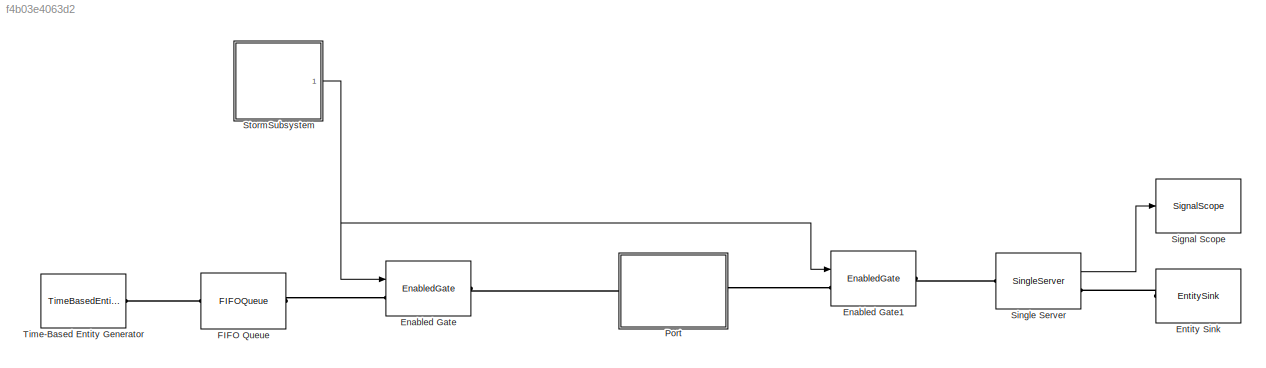
MODEL slx_f4b03e4063d2
KIND model
BLOCK [EnabledGate] Enabled Gate
  InputPortMap = u0
  Ports = [1, 0, 0, 0, 0, 1, 1]
BLOCK [EnabledGate] Enabled Gate1
  InputPortMap = u0
  Ports = [1, 0, 0, 0, 0, 1, 1]
BLOCK [EntitySink] Entity Sink
  Ports = [0, 0, 0, 0, 0, 1]
BLOCK [FIFOQueue] FIFO Queue
  Ports = [0, 0, 0, 0, 0, 1, 1]
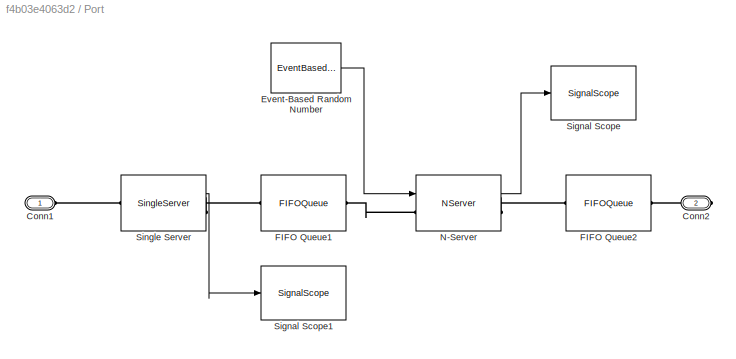
BLOCK [SubSystem] Port 
  FunctionWithSeparateData = off
  MaskHideContents = off
  MinAlgLoopOccurrences = off
  Opaque = off
  Ports = [0, 0, 0, 0, 0, 1, 1]
  PropExecContextOutsideSubsystem = off
  RTWSystemCode = Auto
  RequestExecContextInheritance = off
BLOCK [PMIOPort] Port /Conn1
  Port = 1
  Side = Left
BLOCK [PMIOPort] Port /Conn2
  Port = 2
  Side = Right
BLOCK [EventBasedRandomNumber] Port /Event-Based Random Number
  Distribution = Uniform
  OutputPortMap = o0
  Ports = [0, 1]
  maxUnif = 17
  minUnif = 7
BLOCK [FIFOQueue] Port /FIFO Queue1
  Ports = [0, 0, 0, 0, 0, 1, 1]
BLOCK [FIFOQueue] Port /FIFO Queue2
  Ports = [0, 0, 0, 0, 0, 1, 1]
BLOCK [NServer] Port /N-Server
  InputPortMap = u0
  NumberOfServers = 3
  OutputPortMap = o0
  Ports = [1, 1, 0, 0, 0, 1, 1]
  ServiceTimeFrom = Signal port t
  StatNumberDeparted = on
BLOCK [SignalScope] Port /Signal Scope
  CopyFcn = des.scope.CallbackSupport('seCopyFcn',gcbh)
  DeleteFcn = des.scope.CallbackSupport('seDeleteFcn',gcbh)
  InputPortMap = u0
  LoadFcn = des.scope.CallbackSupport('seLoadFcn',gcbh)
  NameChangeFcn = des.scope.CallbackSupport('seNameChangeFcn',gcbh)
  OpenFcn = des.scope.CallbackSupport('seOpenFcn',gcbh)
  Ports = [1]
  PreSaveFcn = des.scope.CallbackSupport('sePreSaveFcn',gcbh)
  StartFcn = des.scope.CallbackSupport('seStartFcn',gcbh)
  StopFcn = des.scope.CallbackSupport('seStopFcn',gcbh)
BLOCK [SignalScope] Port /Signal Scope1
  CopyFcn = des.scope.CallbackSupport('seCopyFcn',gcbh)
  DeleteFcn = des.scope.CallbackSupport('seDeleteFcn',gcbh)
  InputPortMap = u0
  LoadFcn = des.scope.CallbackSupport('seLoadFcn',gcbh)
  NameChangeFcn = des.scope.CallbackSupport('seNameChangeFcn',gcbh)
  OpenFcn = des.scope.CallbackSupport('seOpenFcn',gcbh)
  Ports = [1]
  PreSaveFcn = des.scope.CallbackSupport('sePreSaveFcn',gcbh)
  StartFcn = des.scope.CallbackSupport('seStartFcn',gcbh)
  StopFcn = des.scope.CallbackSupport('seStopFcn',gcbh)
BLOCK [SingleServer] Port /Single Server
  OutputPortMap = o0
  Ports = [0, 1, 0, 0, 0, 1, 1]
  StatNumberDeparted = on
BLOCK [SignalScope] Signal Scope
  CopyFcn = des.scope.CallbackSupport('seCopyFcn',gcbh)
  DeleteFcn = des.scope.CallbackSupport('seDeleteFcn',gcbh)
  InputPortMap = u0
  LoadFcn = des.scope.CallbackSupport('seLoadFcn',gcbh)
  NameChangeFcn = des.scope.CallbackSupport('seNameChangeFcn',gcbh)
  OpenFcn = des.scope.CallbackSupport('seOpenFcn',gcbh)
  Ports = [1]
  PreSaveFcn = des.scope.CallbackSupport('sePreSaveFcn',gcbh)
  StartFcn = des.scope.CallbackSupport('seStartFcn',gcbh)
  StopFcn = des.scope.CallbackSupport('seStopFcn',gcbh)
BLOCK [SingleServer] Single Server
  OutputPortMap = o0
  Ports = [0, 1, 0, 0, 0, 1, 1]
  ServiceTime = 0.5
  StatNumberDeparted = on
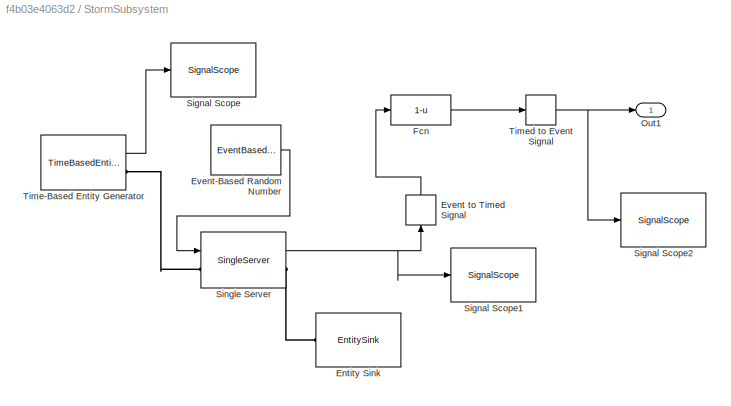
BLOCK [SubSystem] StormSubsystem
  FunctionWithSeparateData = off
  MaskHideContents = off
  MinAlgLoopOccurrences = off
  Opaque = off
  Ports = [0, 1]
  PropExecContextOutsideSubsystem = off
  RTWSystemCode = Auto
  RequestExecContextInheritance = off
BLOCK [EntitySink] StormSubsystem/Entity Sink
  Ports = [0, 0, 0, 0, 0, 1]
BLOCK [EventToTimedSignal] StormSubsystem/Event to Timed Signal
  InputPortMap = u0
  OutputPortMap = o0
  Ports = [1, 1]
BLOCK [EventBasedRandomNumber] StormSubsystem/Event-Based Random Number
  Distribution = Uniform
  OutputPortMap = o0
  Ports = [0, 1]
  maxUnif = 6
  minUnif = 2
BLOCK [Fcn] StormSubsystem/Fcn
  Expr = 1-u
BLOCK [Outport] StormSubsystem/Out1
  IconDisplay = Port number
BLOCK [SignalScope] StormSubsystem/Signal Scope
  CopyFcn = des.scope.CallbackSupport('seCopyFcn',gcbh)
  DeleteFcn = des.scope.CallbackSupport('seDeleteFcn',gcbh)
  InputPortMap = u0
  LoadFcn = des.scope.CallbackSupport('seLoadFcn',gcbh)
  NameChangeFcn = des.scope.CallbackSupport('seNameChangeFcn',gcbh)
  OpenFcn = des.scope.CallbackSupport('seOpenFcn',gcbh)
  Ports = [1]
  PreSaveFcn = des.scope.CallbackSupport('sePreSaveFcn',gcbh)
  StartFcn = des.scope.CallbackSupport('seStartFcn',gcbh)
  StopFcn = des.scope.CallbackSupport('seStopFcn',gcbh)
BLOCK [SignalScope] StormSubsystem/Signal Scope1
  CopyFcn = des.scope.CallbackSupport('seCopyFcn',gcbh)
  DeleteFcn = des.scope.CallbackSupport('seDeleteFcn',gcbh)
  InputPortMap = u0
  LoadFcn = des.scope.CallbackSupport('seLoadFcn',gcbh)
  NameChangeFcn = des.scope.CallbackSupport('seNameChangeFcn',gcbh)
  OpenFcn = des.scope.CallbackSupport('seOpenFcn',gcbh)
  Ports = [1]
  PreSaveFcn = des.scope.CallbackSupport('sePreSaveFcn',gcbh)
  StartFcn = des.scope.CallbackSupport('seStartFcn',gcbh)
  StopFcn = des.scope.CallbackSupport('seStopFcn',gcbh)
BLOCK [SignalScope] StormSubsystem/Signal Scope2
  CopyFcn = des.scope.CallbackSupport('seCopyFcn',gcbh)
  DeleteFcn = des.scope.CallbackSupport('seDeleteFcn',gcbh)
  InputPortMap = u0
  LoadFcn = des.scope.CallbackSupport('seLoadFcn',gcbh)
  NameChangeFcn = des.scope.CallbackSupport('seNameChangeFcn',gcbh)
  OpenFcn = des.scope.CallbackSupport('seOpenFcn',gcbh)
  Ports = [1]
  PreSaveFcn = des.scope.CallbackSupport('sePreSaveFcn',gcbh)
  StartFcn = des.scope.CallbackSupport('seStartFcn',gcbh)
  StopFcn = des.scope.CallbackSupport('seStopFcn',gcbh)
BLOCK [SingleServer] StormSubsystem/Single Server
  InputPortMap = u0
  OutputPortMap = o1
  Ports = [1, 1, 0, 0, 0, 1, 1]
  ServiceTimeFrom = Signal port t
  StatNumberInBlock = on
BLOCK [TimeBasedEntityGenerator] StormSubsystem/Time-Based Entity Generator
  Distribution = Uniform
  Maximum = 52
  Mean = 0.5
  Minimum = 44
  OutputPortMap = o0
  Ports = [0, 1, 0, 0, 0, 0, 1]
  StatNumberDeparted = on
BLOCK [TimedToEventSignal] StormSubsystem/Timed to Event Signal
  InputPortMap = u0
  OutputPortMap = o0
  Ports = [1, 1]
BLOCK [TimeBasedEntityGenerator] Time-Based Entity Generator
  Distribution = Uniform
  Maximum = 5
  Minimum = 3
  Ports = [0, 0, 0, 0, 0, 0, 1]
LINE Port /Event-Based Random Number:1 -> Port /N-Server:1
LINE Port /N-Server:1 -> Port /Signal Scope:1
LINE Port /Single Server:1 -> Port /Signal Scope1:1
LINE Single Server:1 -> Signal Scope:1
LINE StormSubsystem/Event to Timed Signal:1 -> StormSubsystem/Fcn:1
LINE StormSubsystem/Event-Based Random Number:1 -> StormSubsystem/Single Server:1
LINE StormSubsystem/Fcn:1 -> StormSubsystem/Timed to Event Signal:1
NET StormSubsystem/Single Server:1 -> StormSubsystem/Event to Timed Signal:1, StormSubsystem/Signal Scope1:1
LINE StormSubsystem/Time-Based Entity Generator:1 -> StormSubsystem/Signal Scope:1
NET StormSubsystem/Timed to Event Signal:1 -> StormSubsystem/Out1:1, StormSubsystem/Signal Scope2:1
NET StormSubsystem:1 -> Enabled Gate1:1, Enabled Gate:1
PLINE Enabled Gate1:LConn1 -- Port :RConn1
PLINE Enabled Gate1:RConn1 -- Single Server:LConn1
PLINE Enabled Gate:LConn1 -- FIFO Queue:RConn1
PLINE Enabled Gate:RConn1 -- Port :LConn1
PLINE Entity Sink:LConn1 -- Single Server:RConn1
PLINE FIFO Queue:LConn1 -- Time-Based Entity Generator:RConn1
PLINE Port /Conn1:RConn1 -- Port /Single Server:LConn1
PLINE Port /Conn2:RConn1 -- Port /FIFO Queue2:RConn1
PLINE Port /FIFO Queue1:LConn1 -- Port /Single Server:RConn1
PLINE Port /FIFO Queue1:RConn1 -- Port /N-Server:LConn1
PLINE Port /FIFO Queue2:LConn1 -- Port /N-Server:RConn1
PLINE StormSubsystem/Entity Sink:LConn1 -- StormSubsystem/Single Server:RConn1
PLINE StormSubsystem/Single Server:LConn1 -- StormSubsystem/Time-Based Entity Generator:RConn1
note: NET lines group one-source signal fan-out (src -> all destinations, sorted); 1:1 wires keep LINE
